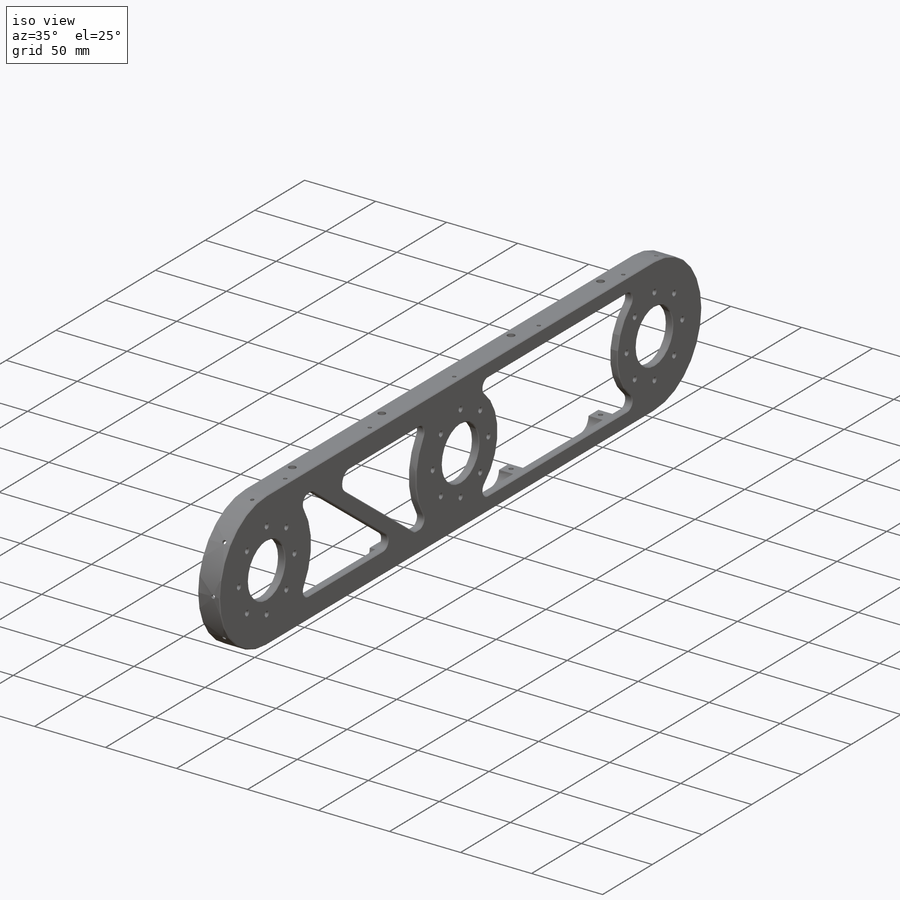
[diagram: iso view]
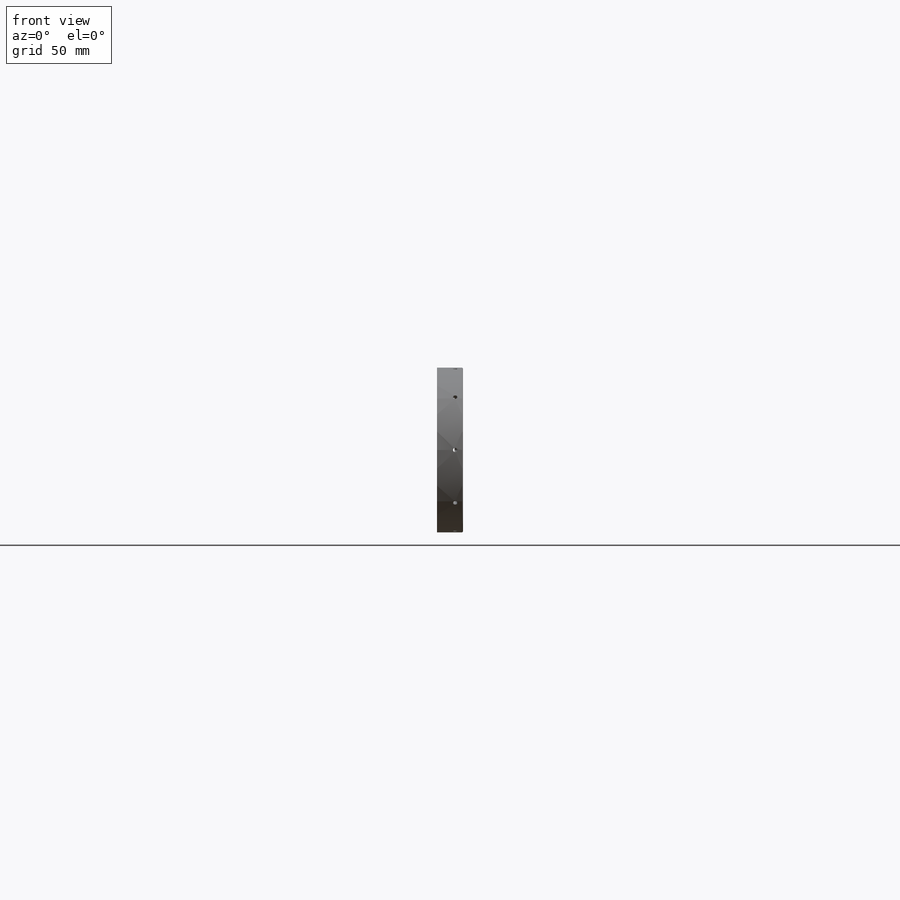
[diagram: front view]
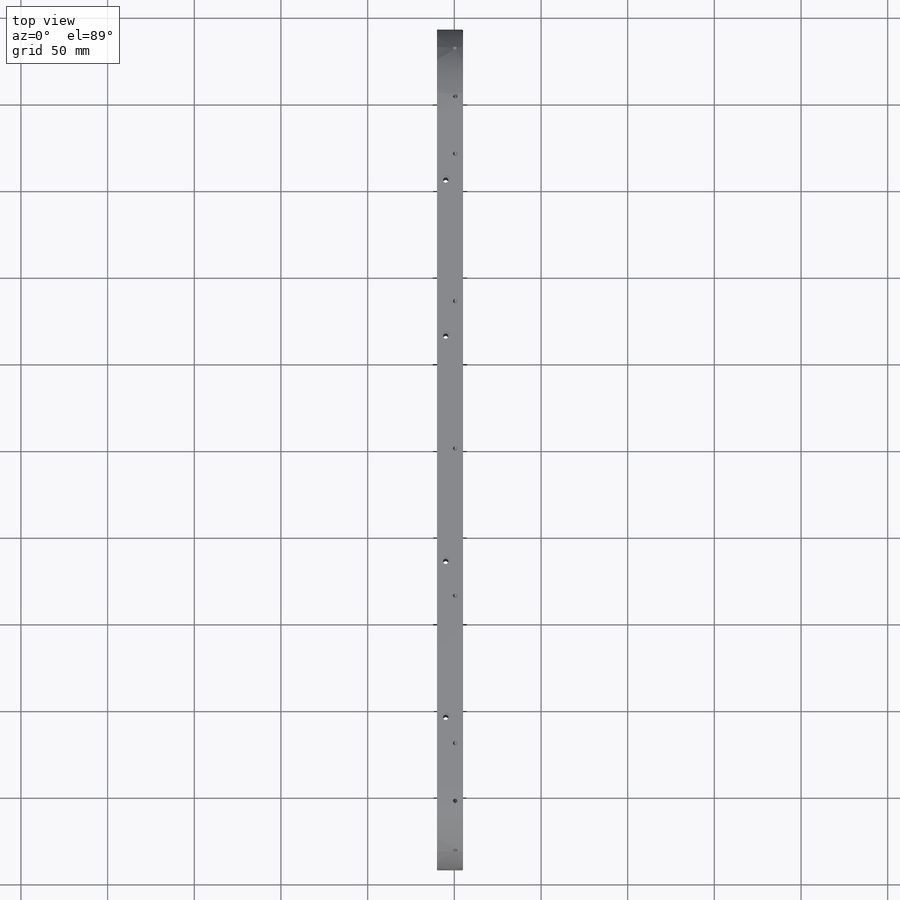
[diagram: top view]
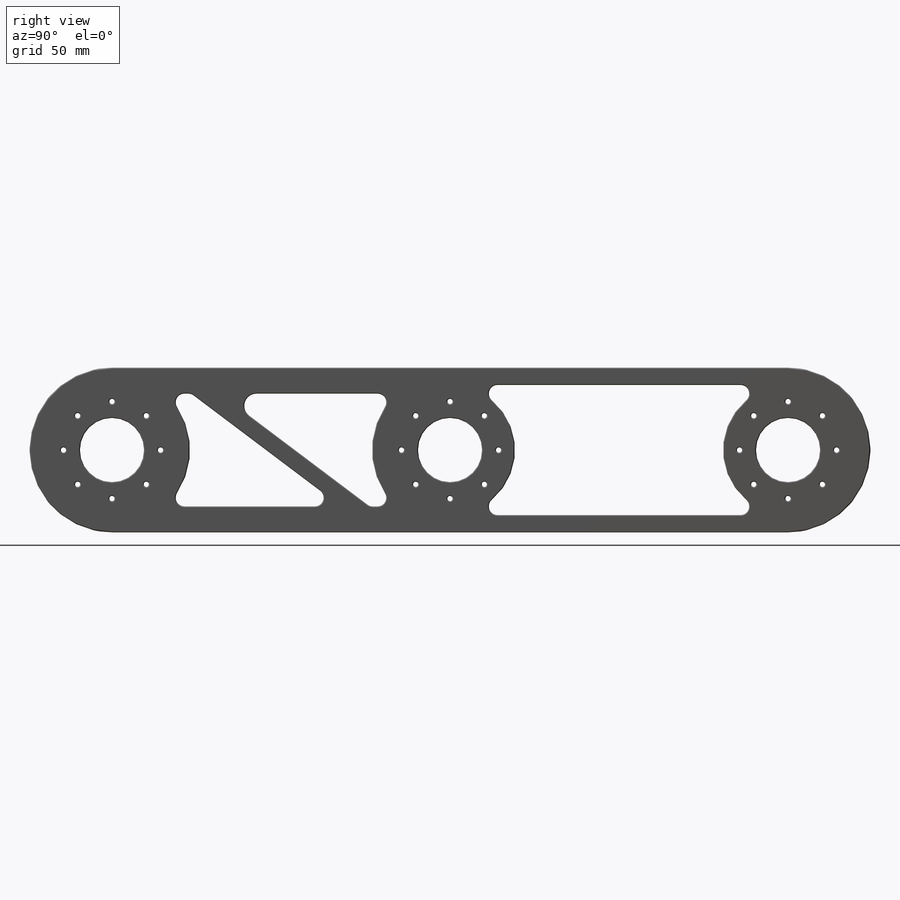
[diagram: right view]
SOLIDWORKS PART (.sldprt)
format: sldprt  version: not decoded by parser v0  size: 1,167,360 bytes
history: native  units: mm
features: sketch x28, mirror x10, hole x7, cut_extrude x6, pattern_circular x4, thread x4, fillet x3, extrude x2, plane x2, material x1, chamfer x1 (+12 scaffold rows collapsed)
feature tree (80):
  scaffold x12  (default folders/planes/origin — collapsed)
  material  "2014 Alloy"
  sketch  "Sketch1"  dims[c1.D3=~47.902283mm c1.D1=~31.840733mm c1.D2=~77.170276mm c2.D1=390.0mm c2.D2=95.0mm c2.D3=95.0mm]
  extrude  "Boss-Extrude1"  Depth=5mm
  sketch  "Sketch2"  dims[c1.D2=37.0mm c1.D1=195.0mm c2.D2=~66.511158mm c2.D3=~23.253635mm]
  cut_extrude  "Cut-Extrude1"  [1 undecoded]
  hole  "Ø3.0mm Dowel Hole1"  Diameter=3mm Depth=15mm
  sketch  "Sketch4"  dims[D1=28.0mm D2=0.0mm]
  sketch  "Sketch3"  dims[hole-wizard template sketch: 50 standard entries collapsed; hole parameters above]
  pattern_circular  "CirPattern1"  Count=8 Angle=360deg
  sketch  "Sketch5"  dims[c1.D1=~43.424998mm c1.D3=48.0mm c2.D1=0.75mm c2.D2=0.75mm]
  sketch  "Sketch6"  dims[D1=~9.996997mm]
  sketch  "Sketch7"  dims[D1=~0.915261mm]
  plane  "Plane1"
  mirror  "Mirror1"
  sketch  "Sketch9"  dims[D1=37.0mm]
  cut_extrude  "Cut-Extrude3"  [1 undecoded]
  hole  "Ø3.0mm Dowel Hole2"  Diameter=3mm Depth=15mm
  sketch  "Sketch11"  dims[D1=28.0mm]
  sketch  "Sketch10"  dims[hole-wizard template sketch: 50 standard entries collapsed; hole parameters above]
  pattern_circular  "CirPattern2"  Count=8 Angle=360deg
  sketch  "Sketch12"  dims[D1=48.0mm D2=0.75mm D3=0.75mm]
  sketch  "Sketch28"  dims[c1.D1=47.5mm c1.D3=37.5mm c2.D1=10.0mm c2.D2=10.0mm c2.D3=~1.070676mm]
  extrude  "Boss-Extrude2"  Depth=10mm
  hole  "CBORE for M1.6 Hex Head Cap Screw1"  Diameter=3mm Depth=15mm
  sketch  "Sketch23"  dims[c1.D1=3.0mm c1.D2=140.0mm c1.D3=~140.032139mm c2.D2=3.0mm c2.D1=130.0mm c3.D2=5.0mm c3.D3=90.0mm]
  sketch  "Sketch24"  dims[hole-wizard template sketch: 28 standard entries collapsed; hole parameters kept: c8.Hole Dia.=3.0mm c8.Hole Depth=15.0mm c8.C'Bore Dia.=5.0mm c8.C'Bore Depth=5.0mm c8.D5=~14.816244mm c8.Drill Angle=118.0deg]
  mirror  "Mirror4"
  mirror  "Mirror5"
  sketch  "Sketch25"  dims[c1.D1=5.0mm c1.D8=70.0mm c1.D6=70.0mm c1.D7=70.0mm c2.D6=45.0mm c2.D7=45.0mm c2.D8=5.0mm c2.D9=70.0mm c2.D10=35.0mm c2.D12=5.0mm c2.D13=~7.027948mm c2.D15=5.0mm c3.D9=~32.539598mm c3.D11=5.0mm c4.D9=37.5mm c4.D11=70.0mm c5.D9=70.0mm c5.D11=5.0mm c5.D1=40.0mm c5.D2=40.0mm c5.D3=20.0mm c5.D4=20.0mm c5.D5=~127.475488mm c5.D7=~114.629638mm c5.D6=~2.82313mm c6.D5=~49.457587mm c6.D2=15.0mm c6.D3=15.0mm c6.D4=10.0mm c7.D5=35.0mm c7.D6=35.0mm c7.D7=~76.368093mm c7.D8=~14.494813mm c7.D1=15.0mm c8.D6=~14.47935mm c8.D3=15.0mm c8.D5=15.0mm c8.D8=~0.537726mm c8.D9=5.0mm c8.D11=15.0mm c8.D2=15.0mm c9.D3=15.0mm c9.D5=15.0mm c9.D13=75.0mm c10.D13=75.0mm c10.D14=~95.585528mm c10.D15=~9.725776mm c10.D9=~2.584159mm c10.D11=~18.199152mm c10.D10=15.0mm c10.D12=~75.055655mm c11.D12=~36.975279deg c11.D5=5.0mm c11.D6=5.0mm c11.D9=5.0mm]
  cut_extrude  "Cut-Extrude7"  [1 undecoded]
  sketch  "Sketch29"  dims[D1=73.0mm D2=73.0mm D3=~55.561893mm]
  cut_extrude  "Cut-Extrude8"  Depth=5mm
  fillet  "Fillet2"  Radius=5mm
  hole  "Ø4.0mm Dowel Hole1"  Diameter=4mm Depth=17.29mm
  sketch  "Sketch31"  dims[D1=~2.525345mm]
  sketch  "Sketch30"  dims[hole-wizard template sketch: 47 standard entries collapsed; hole parameters kept: c15.Hole Depth=17.29mm c15.D3=~14.816244mm c15.Drill Angle=118.0deg]
  mirror  "Mirror6"
  sketch  "Sketch32"  dims[D1=5.0mm D2=5.0mm D3=5.0mm D4=5.0mm D7=16.0mm D5=8.0mm D6=8.0mm]
  cut_extrude  "Cut-Extrude9"  Depth=10mm
  fillet  "Fillet3"  Radius=8mm
  mirror  "Mirror7"
  mirror  "Mirror8"
  sketch  "Sketch33"  dims[D1=75.0mm D2=75.0mm D3=~18.656091mm]
  cut_extrude  "Cut-Extrude11"  Depth=5mm
  fillet  "Fillet4"  Radius=5mm
  hole  "Ø3.0mm Dowel Hole3"  Diameter=3mm Depth=17.29mm
  sketch  "Sketch35"  dims[c1.D1=10.0mm c1.D2=10.0mm c2.D1=35.0mm c2.D2=35.0mm]
  sketch  "Sketch34"  dims[hole-wizard template sketch: 50 standard entries collapsed; hole parameters above]
  mirror  "Mirror9"
  hole  "M3 Tapped Hole1"  Diameter=2.5mm Depth=7.5mm
  sketch  "Sketch37"  dims[D1=85.0mm D2=4.5mm D3=85.0mm]
  sketch  "Sketch38"  dims[hole-wizard template sketch: 50 standard entries collapsed; hole parameters above]
  thread  "Hole Thread6"  Diameter=6mm  [1 undecoded]
  thread  "Hole Thread7"  Diameter=6mm  [1 undecoded]
  thread  "Hole Thread8"  Diameter=6mm  [1 undecoded]
  mirror  "Mirror10"
  mirror  "Mirror11"
  sketch  "Sketch39"  dims[D1=~53.386207mm]
  sketch  "Sketch40"  dims[D1=~6.827591mm]
  plane  "Plane2"
  hole  "M3 Tapped Hole2"  Diameter=2.5mm Depth=15mm
  sketch  "Sketch43"  dims[D1=4.5mm]
  sketch  "Sketch41"  dims[hole-wizard template sketch: 50 standard entries collapsed; hole parameters above]
  thread  "Hole Thread9"  Diameter=12mm  [1 undecoded]
  pattern_circular  "CirPattern3"  Count=3 Angle=40deg
  pattern_circular  "CirPattern4"  Count=3 Angle=40deg
  mirror  "Mirror12"
  chamfer  "Chamfer1"  Distance=0.5mm Angle=45deg
decode coverage: 52 of 65 modeling features carry decoded parameters
note: ~ marks probable driven/reference dimensions
note: 7 parameter values undecoded
summary: Diameter pulled from absorbed wizard sketch | no parameter record found for 3 features
note: suppression state not decoded; provenance and decode notes live in map.json
